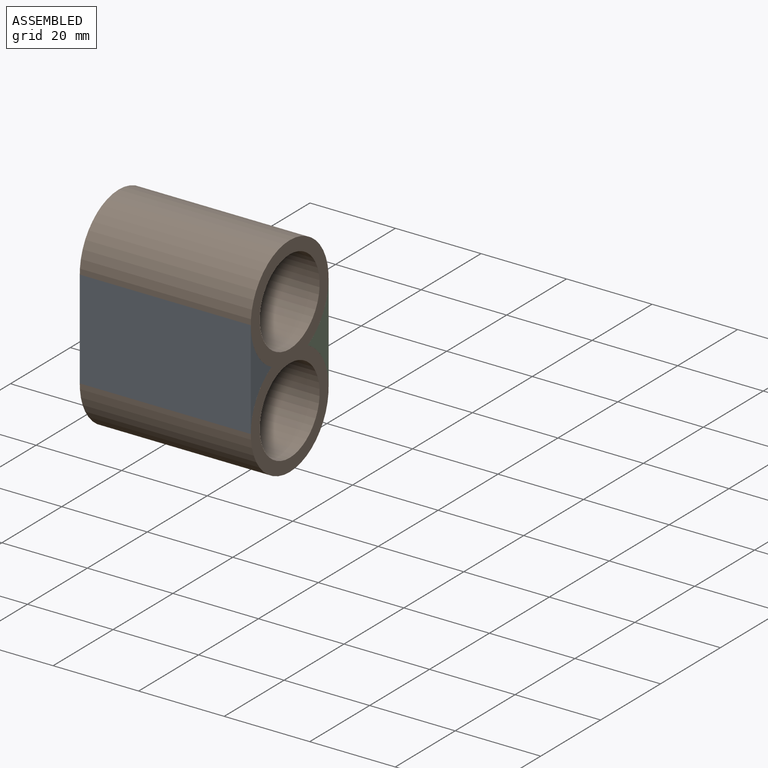
[diagram: assembled view]
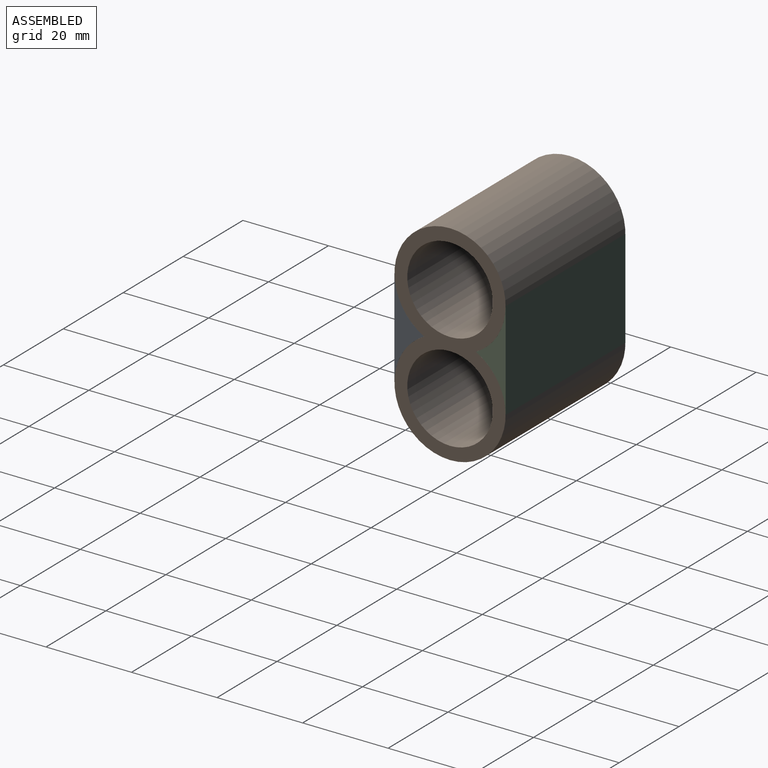
[diagram: assembled view, second angle]
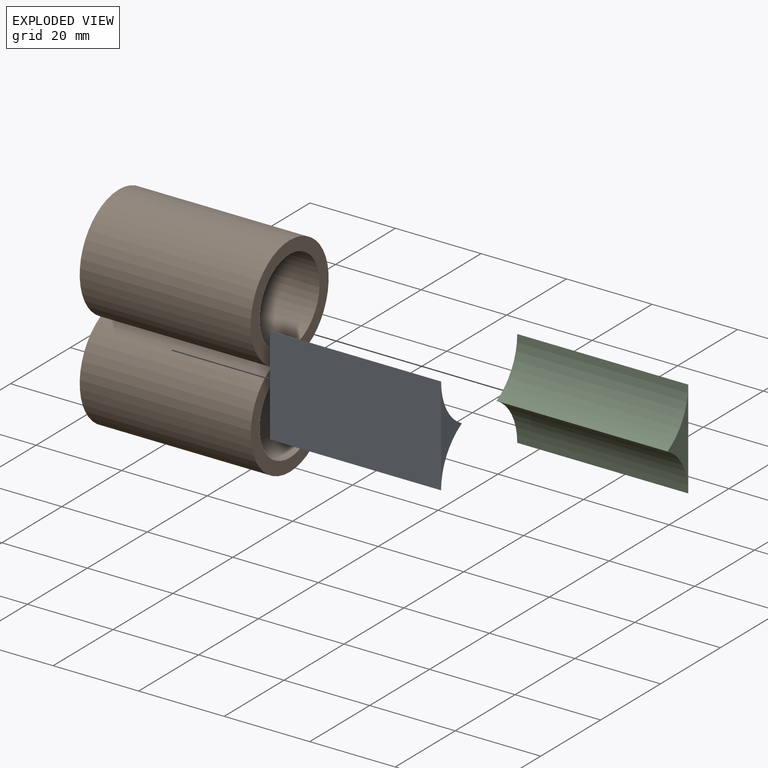
[diagram: exploded view]
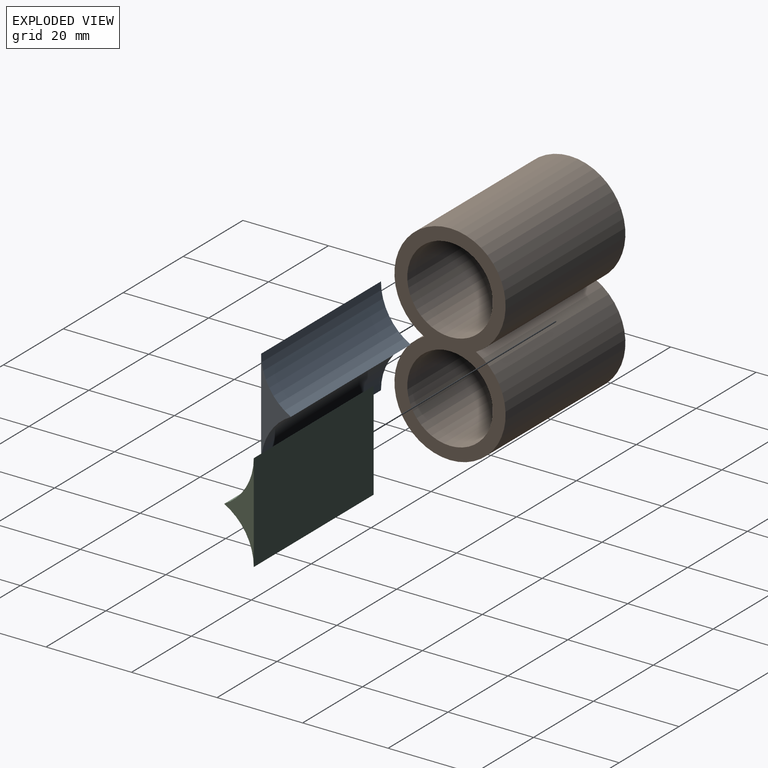
[diagram: exploded view, second angle]
ASSEMBLY  parts=3 mates=6
PART A: 5 faces, bbox 40x23x6.9 mm
  f0: cylinder r=13mm len=40mm, axis (-1,0,0), area 564.5mm2, adj f1,f2,f3,f4
  f1: cylinder r=13mm len=40mm, axis (-1,0,0), area 564.5mm2, adj f0,f2,f3,f4
  f2: plane 40x23mm, normal (0,0,1), area 920mm2, adj f0,f1,f3,f4
  f3: plane 23x6.94mm, normal (1,0,0), area 45.8mm2, adj f0,f1,f2
  f4: plane 23x6.94mm, normal (-1,0,0), area 45.8mm2, adj f0,f1,f2
PART B: 6 faces, bbox 49x26x40 mm
  f0: cylinder r=13mm len=40mm, axis (0,0,-1), area 2762.7mm2, adj f3,f4,f5
  f1: cylinder r=10mm len=40mm, axis (0,0,-1), area 2513.3mm2, adj f4,f5
  f2: cylinder r=10mm len=40mm, axis (0,0,-1), area 2513.3mm2, adj f4,f5
  f3: cylinder r=13mm len=40mm, axis (0,0,-1), area 2762.7mm2, adj f0,f4,f5
  f4: plane 49x26mm, normal (0,0,1), area 409mm2, adj f0,f1,f2,f3
  f5: plane 49x26mm, normal (0,0,-1), area 409mm2, adj f0,f1,f2,f3
PART C: same geometry as A
PLACE A rot(axis=(1,0,0),90deg) t=(-11.96,36.08,20.38)mm
PLACE B rot(axis=(0,1,0),90deg) t=(-11.96,36.08,43.38)mm
PLACE C rot(axis=(-1,0,0),90deg) t=(-11.96,36.08,43.38)mm
MATE cylindrical B.f0 <-> C.f1  axis (-1,0,0) through (8.04,36.08,20.38)mm
MATE planar C.f3 <-> B.f4  axis (1,0,0) through (28.04,47.15,31.88)mm
MATE cylindrical A.f0 <-> B.f0  axis (-1,0,0) through (28.04,36.08,20.38)mm
MATE planar A.f3 <-> B.f4  axis (1,0,0) through (28.04,25.02,31.88)mm
MATE cylindrical C.f0 <-> B.f3  axis (-1,0,0) through (8.04,36.08,43.38)mm
MATE cylindrical A.f1 <-> B.f3  axis (-1,0,0) through (8.04,36.08,43.38)mm
